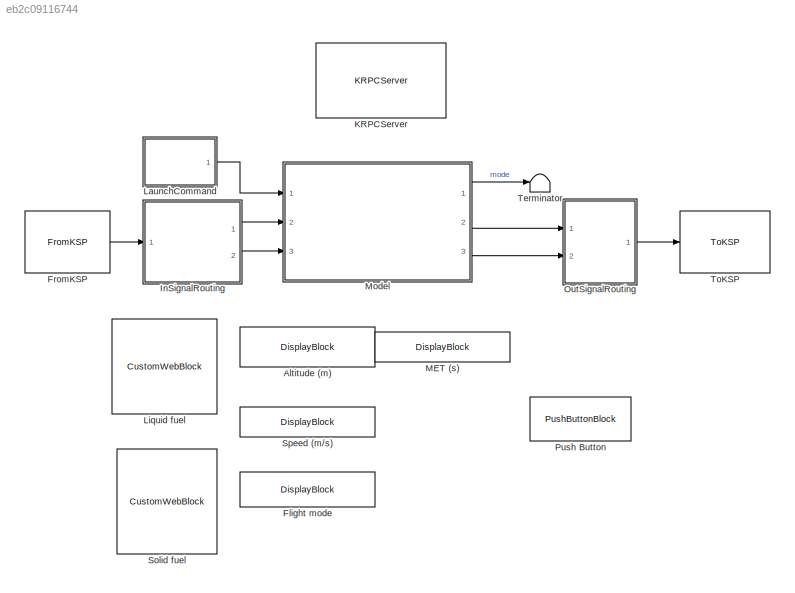
MODEL slx_eb2c09116744
KIND model
CONFIG AbsTol = auto
CONFIG EnableMultiTasking = off
CONFIG FixedStep = 0.01
CONFIG MaxStep = auto
CONFIG MinStep = auto
CONFIG RelTol = 1e-3
CONFIG SampleTimeConstraint = Unconstrained
CONFIG SolverName = FixedStepAuto
CONFIG StartTime = 0.0
CONFIG StopTime = inf
BLOCK [DisplayBlock] Altitude (m)
  Format = short
  LabelPosition = Bottom
  Transparency = 1
BLOCK [DisplayBlock] Flight mode
  Format = short
  LabelPosition = Bottom
  Transparency = 1
BLOCK [Reference] FromKSP  REF=ksplib/FromKSP  (lib defined in slx_22327d9a050f)
  Ports = [0, 1]
  SourceBlock = ksplib/FromKSP
  SourceType = FromKSP
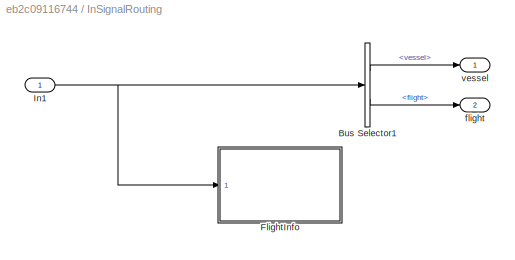
BLOCK [SubSystem] InSignalRouting
  Ports = [1, 2]
  RequestExecContextInheritance = off
BLOCK [BusSelector] InSignalRouting/Bus Selector1
  OutputSignals = vessel,flight
  Ports = [1, 2]
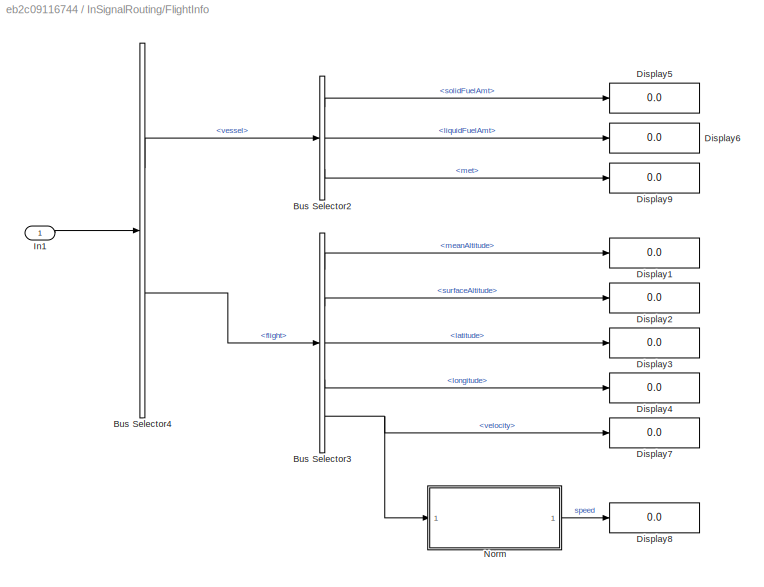
BLOCK [SubSystem] InSignalRouting/FlightInfo
  Ports = [1]
  RequestExecContextInheritance = off
BLOCK [BusSelector] InSignalRouting/FlightInfo/Bus Selector2
  OutputSignals = solidFuelAmt,liquidFuelAmt,met
  Ports = [1, 3]
BLOCK [BusSelector] InSignalRouting/FlightInfo/Bus Selector3
  OutputSignals = meanAltitude,surfaceAltitude,latitude,longitude,velocity
  Ports = [1, 5]
BLOCK [BusSelector] InSignalRouting/FlightInfo/Bus Selector4
  OutputSignals = vessel,flight
  Ports = [1, 2]
BLOCK [Display] InSignalRouting/FlightInfo/Display1
  Decimation = 1
  Ports = [1]
BLOCK [Display] InSignalRouting/FlightInfo/Display2
  Decimation = 1
  Ports = [1]
BLOCK [Display] InSignalRouting/FlightInfo/Display3
  Decimation = 1
  Ports = [1]
BLOCK [Display] InSignalRouting/FlightInfo/Display4
  Decimation = 1
  Ports = [1]
BLOCK [Display] InSignalRouting/FlightInfo/Display5
  Decimation = 1
  Ports = [1]
BLOCK [Display] InSignalRouting/FlightInfo/Display6
  Decimation = 1
  Ports = [1]
BLOCK [Display] InSignalRouting/FlightInfo/Display7
  Decimation = 1
  Ports = [1]
BLOCK [Display] InSignalRouting/FlightInfo/Display8
  Decimation = 1
  Ports = [1]
BLOCK [Display] InSignalRouting/FlightInfo/Display9
  Decimation = 1
  Ports = [1]
BLOCK [Inport] InSignalRouting/FlightInfo/In1
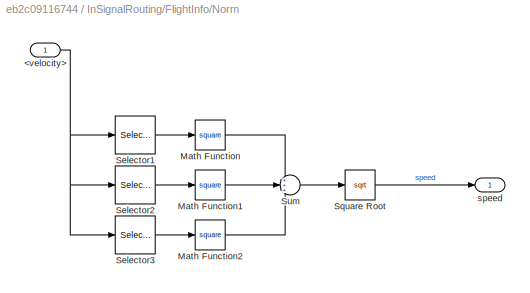
BLOCK [SubSystem] InSignalRouting/FlightInfo/Norm
  Ports = [1, 1]
  RequestExecContextInheritance = off
BLOCK [Inport] InSignalRouting/FlightInfo/Norm/<velocity>
BLOCK [Math] InSignalRouting/FlightInfo/Norm/Math Function
  Operator = square
  Ports = [1, 1]
BLOCK [Math] InSignalRouting/FlightInfo/Norm/Math Function1
  Operator = square
  Ports = [1, 1]
BLOCK [Math] InSignalRouting/FlightInfo/Norm/Math Function2
  Operator = square
  Ports = [1, 1]
BLOCK [Selector] InSignalRouting/FlightInfo/Norm/Selector1
  IndexOptions = Index vector (dialog)
  Indices = 1
  InputPortWidth = 3
  OutputSizes = 1
  Ports = [1, 1]
BLOCK [Selector] InSignalRouting/FlightInfo/Norm/Selector2
  IndexOptions = Index vector (dialog)
  Indices = 2
  InputPortWidth = 3
  OutputSizes = 1
  Ports = [1, 1]
BLOCK [Selector] InSignalRouting/FlightInfo/Norm/Selector3
  IndexOptions = Index vector (dialog)
  Indices = 3
  InputPortWidth = 3
  OutputSizes = 1
  Ports = [1, 1]
BLOCK [Sqrt] InSignalRouting/FlightInfo/Norm/Square Root
BLOCK [Sum] InSignalRouting/FlightInfo/Norm/Sum
  Inputs = +++
  Ports = [3, 1]
BLOCK [Outport] InSignalRouting/FlightInfo/Norm/speed
BLOCK [Inport] InSignalRouting/In1
BLOCK [Outport] InSignalRouting/flight
  Port = 2
BLOCK [Outport] InSignalRouting/vessel
BLOCK [Reference] KRPCServer  REF=ksplib/KRPCServer  (lib defined in slx_22327d9a050f)
  Ports = []
  SourceBlock = ksplib/KRPCServer
  SourceType = KRPCServer
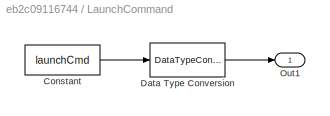
BLOCK [SubSystem] LaunchCommand
  Ports = [0, 1]
  RequestExecContextInheritance = off
BLOCK [Constant] LaunchCommand/Constant
  Value = launchCmd
BLOCK [DataTypeConversion] LaunchCommand/Data Type Conversion
  OutDataTypeStr = boolean
  RndMeth = Floor
  SaturateOnIntegerOverflow = off
BLOCK [Outport] LaunchCommand/Out1
BLOCK [CustomWebBlock] Liquid fuel
  Configuration = {"components":[{"name":"CircularScaleComponent","settings":{"bounds":{"max":225,"min":0,"tickInterval":"auto"},"direction":"cw","flipLimits":0,"innerRadius":0.75,"internalTickHeightScaleFactor":1,"labelColor":[255,252,199],"labelFont":{"font":"Arial","fontSize":12},"labelTransparency":1,"minorTickHeightScaleFactor":0.2,"needleImage":{"size":[1890,567],"src":"data:image\/svg+xml;base64,PD94bWwgdmVy...<+15935ch>
  LabelPosition = Hide
  ShowInitialText = on
BLOCK [DisplayBlock] MET (s)
  Format = short
  LabelPosition = Bottom
  Transparency = 1
BLOCK [ModelReference] Model
  ModelNameDialog = guidance
  ModelReferenceVersion = 1.177
  Ports = [3, 3]
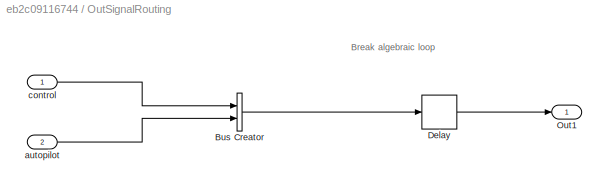
BLOCK [SubSystem] OutSignalRouting
  Ports = [2, 1]
  RequestExecContextInheritance = off
BLOCK [BusCreator] OutSignalRouting/Bus Creator
  DisplayOption = bar
  InheritFromInputs = off
  Inputs = 2
  NonVirtualBus = on
  OutDataTypeStr = Bus: kspTxIn
  Ports = [2, 1]
BLOCK [Delay] OutSignalRouting/Delay
  DelayLength = 1
  InputPortMap = u0
  Ports = [1, 1]
BLOCK [Outport] OutSignalRouting/Out1
BLOCK [Inport] OutSignalRouting/autopilot
  OutDataTypeStr = Bus: autopilot
  Port = 2
BLOCK [Inport] OutSignalRouting/control
  OutDataTypeStr = Bus: control
BLOCK [PushButtonBlock] Push Button
  ButtonText = Launch
BLOCK [CustomWebBlock] Solid fuel
  Configuration = {"components":[{"name":"CircularScaleComponent","settings":{"bounds":{"max":750,"min":0,"tickInterval":"auto"},"direction":"cw","flipLimits":0,"innerRadius":0.75,"internalTickHeightScaleFactor":1,"labelColor":[255,252,199],"labelFont":{"font":"Arial","fontSize":12},"labelTransparency":1,"minorTickHeightScaleFactor":0.2,"needleImage":{"size":[1890,567],"src":"data:image\/svg+xml;base64,PD94bWwgdmVy...<+15935ch>
  LabelPosition = Hide
  ShowInitialText = on
BLOCK [DisplayBlock] Speed (m//s)
  Format = short
  LabelPosition = Bottom
  Transparency = 1
BLOCK [Terminator] Terminator
BLOCK [Reference] ToKSP  REF=ksplib/ToKSP  (lib defined in slx_22327d9a050f)
  Ports = [1]
  SourceBlock = ksplib/ToKSP
  SourceType = ToKSP
ANNOTATION OutSignalRouting: Break algebraic loop
LINE FromKSP:1 -> InSignalRouting:1
LINE InSignalRouting/Bus Selector1:1 -> InSignalRouting/vessel:1
LINE InSignalRouting/Bus Selector1:2 -> InSignalRouting/flight:1
LINE InSignalRouting/FlightInfo/Bus Selector2:1 -> InSignalRouting/FlightInfo/Display5:1
LINE InSignalRouting/FlightInfo/Bus Selector2:2 -> InSignalRouting/FlightInfo/Display6:1
LINE InSignalRouting/FlightInfo/Bus Selector2:3 -> InSignalRouting/FlightInfo/Display9:1
LINE InSignalRouting/FlightInfo/Bus Selector3:1 -> InSignalRouting/FlightInfo/Display1:1
LINE InSignalRouting/FlightInfo/Bus Selector3:2 -> InSignalRouting/FlightInfo/Display2:1
LINE InSignalRouting/FlightInfo/Bus Selector3:3 -> InSignalRouting/FlightInfo/Display3:1
LINE InSignalRouting/FlightInfo/Bus Selector3:4 -> InSignalRouting/FlightInfo/Display4:1
NET InSignalRouting/FlightInfo/Bus Selector3:5 -> InSignalRouting/FlightInfo/Display7:1, InSignalRouting/FlightInfo/Norm:1
LINE InSignalRouting/FlightInfo/Bus Selector4:1 -> InSignalRouting/FlightInfo/Bus Selector2:1
LINE InSignalRouting/FlightInfo/Bus Selector4:2 -> InSignalRouting/FlightInfo/Bus Selector3:1
LINE InSignalRouting/FlightInfo/In1:1 -> InSignalRouting/FlightInfo/Bus Selector4:1
NET InSignalRouting/FlightInfo/Norm/<velocity>:1 -> InSignalRouting/FlightInfo/Norm/Selector1:1, InSignalRouting/FlightInfo/Norm/Selector2:1, InSignalRouting/FlightInfo/Norm/Selector3:1
LINE InSignalRouting/FlightInfo/Norm/Math Function1:1 -> InSignalRouting/FlightInfo/Norm/Sum:2
LINE InSignalRouting/FlightInfo/Norm/Math Function2:1 -> InSignalRouting/FlightInfo/Norm/Sum:3
LINE InSignalRouting/FlightInfo/Norm/Math Function:1 -> InSignalRouting/FlightInfo/Norm/Sum:1
LINE InSignalRouting/FlightInfo/Norm/Selector1:1 -> InSignalRouting/FlightInfo/Norm/Math Function:1
LINE InSignalRouting/FlightInfo/Norm/Selector2:1 -> InSignalRouting/FlightInfo/Norm/Math Function1:1
LINE InSignalRouting/FlightInfo/Norm/Selector3:1 -> InSignalRouting/FlightInfo/Norm/Math Function2:1
LINE InSignalRouting/FlightInfo/Norm/Square Root:1 -> InSignalRouting/FlightInfo/Norm/speed:1
LINE InSignalRouting/FlightInfo/Norm/Sum:1 -> InSignalRouting/FlightInfo/Norm/Square Root:1
LINE InSignalRouting/FlightInfo/Norm:1 -> InSignalRouting/FlightInfo/Display8:1
NET InSignalRouting/In1:1 -> InSignalRouting/Bus Selector1:1, InSignalRouting/FlightInfo:1
LINE InSignalRouting:1 -> Model:2
LINE InSignalRouting:2 -> Model:3
LINE LaunchCommand/Constant:1 -> LaunchCommand/Data Type Conversion:1
LINE LaunchCommand/Data Type Conversion:1 -> LaunchCommand/Out1:1
LINE LaunchCommand:1 -> Model:1
LINE Model:1 -> Terminator:1
LINE Model:2 -> OutSignalRouting:1
LINE Model:3 -> OutSignalRouting:2
LINE OutSignalRouting/Bus Creator:1 -> OutSignalRouting/Delay:1
LINE OutSignalRouting/Delay:1 -> OutSignalRouting/Out1:1
LINE OutSignalRouting/autopilot:1 -> OutSignalRouting/Bus Creator:2
LINE OutSignalRouting/control:1 -> OutSignalRouting/Bus Creator:1
LINE OutSignalRouting:1 -> ToKSP:1
note: NET lines group one-source signal fan-out (src -> all destinations, sorted); 1:1 wires keep LINE
